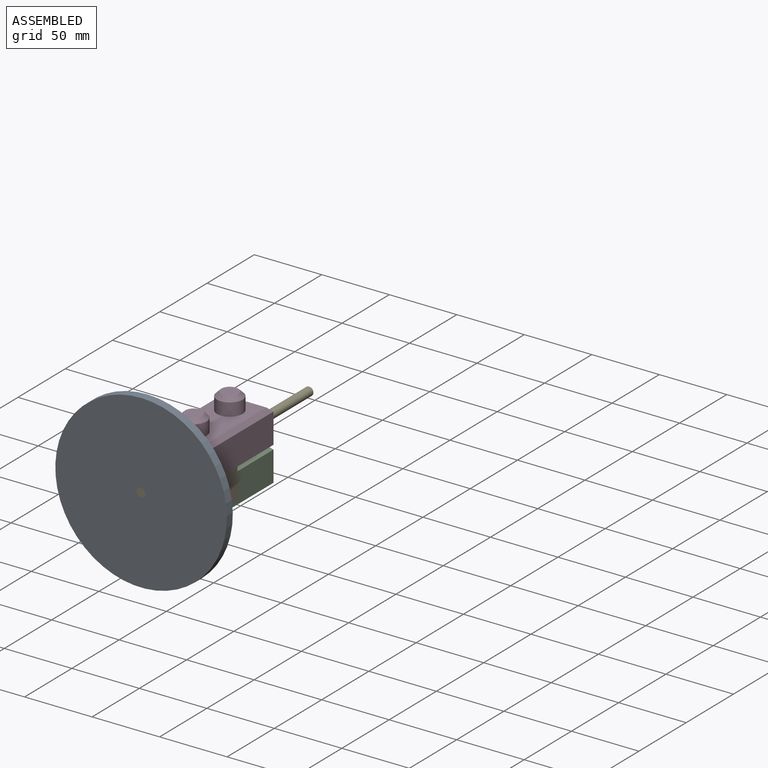
[diagram: assembled view]
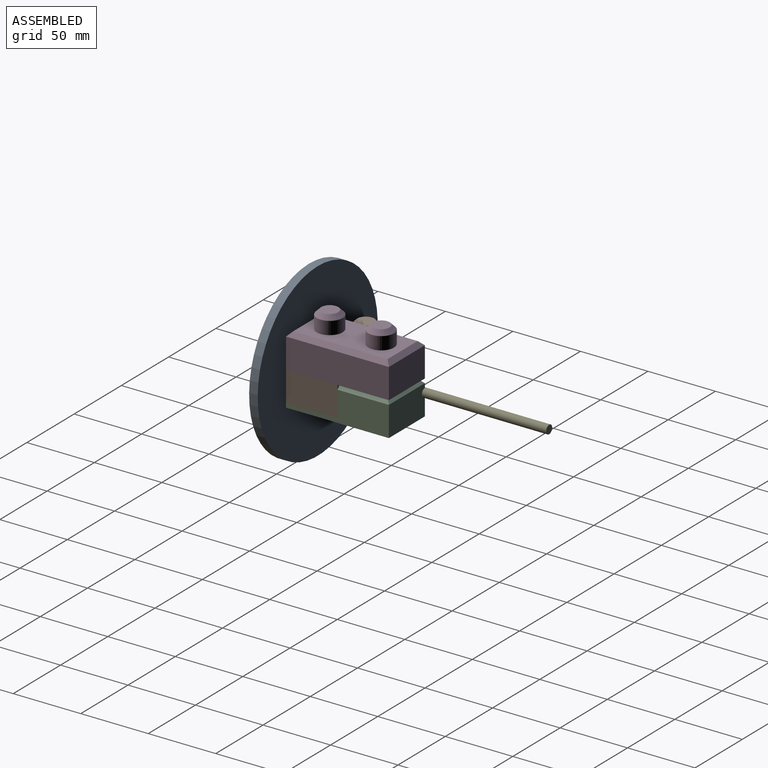
[diagram: assembled view, second angle]
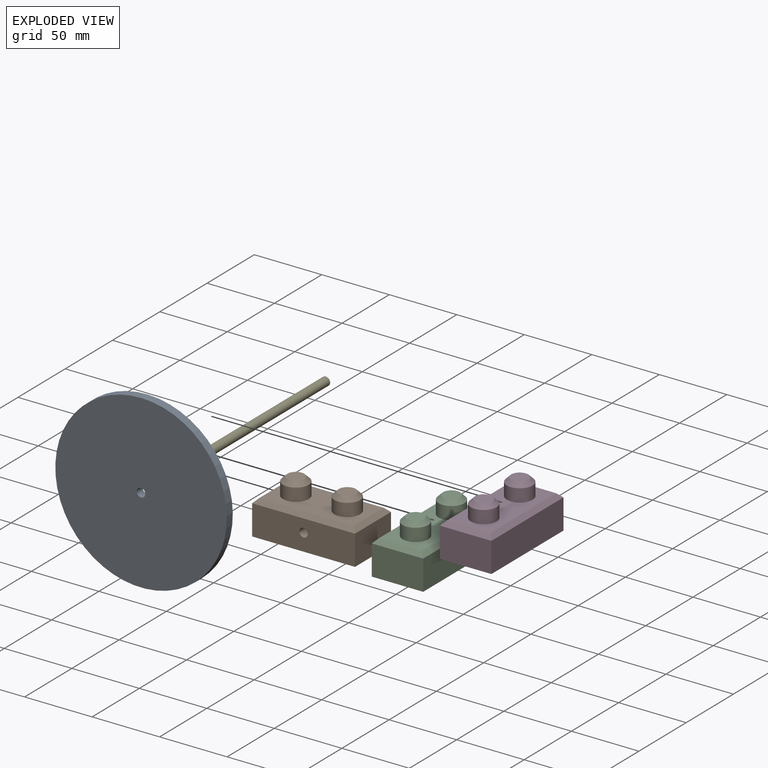
[diagram: exploded view]
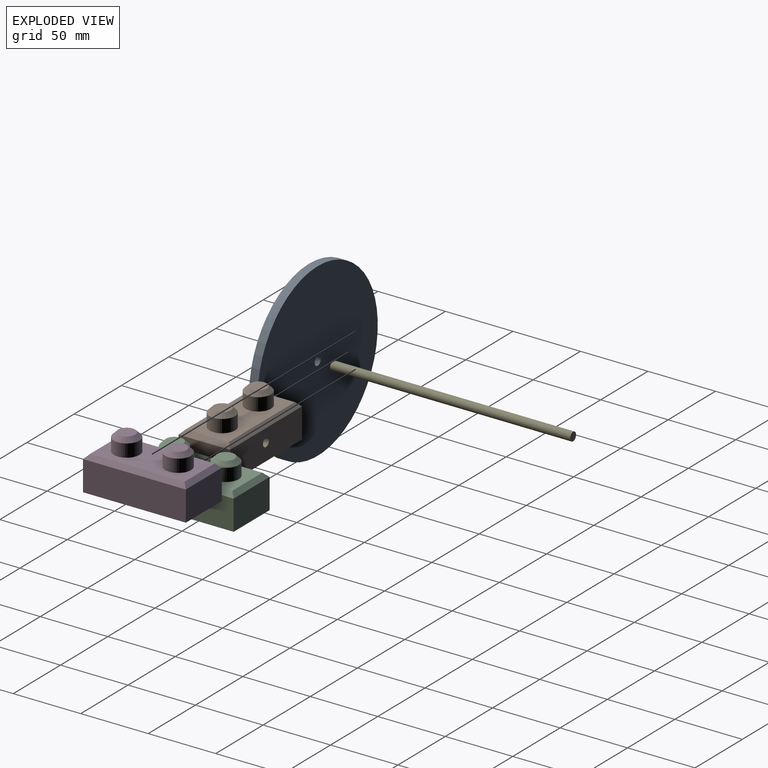
[diagram: exploded view, second angle]
ASSEMBLY  parts=5 mates=3
PART A: 4 faces, bbox 127x127x6.4 mm
  f0: cylinder r=3.17mm len=6.35mm, axis (0,0,-1), area 126.7mm2, adj f2,f3
  f1: cylinder r=63.5mm len=127mm, axis (0,0,-1), area 2533.5mm2, adj f2,f3
  f2: plane 127x127mm, normal (0,0,1), area 12636mm2, adj f0,f1
  f3: plane 127x127mm, normal (0,0,-1), area 12636mm2, adj f0,f1
PART B: 27 faces, bbox 76.2x38.1x38.1 mm
  f0: plane 38.1x22.23mm, normal (-1,0,0), area 846.8mm2, adj f1,f3,f5,f11
  f1: plane 76.2x22.23mm, normal (0,-1,0), area 1661.9mm2, adj f0,f2,f5,f10,f26
  f2: plane 38.1x22.23mm, normal (1,0,0), area 846.8mm2, adj f1,f3,f5,f12
  f3: plane 76.2x22.23mm, normal (0,1,0), area 1661.9mm2, adj f0,f2,f5,f13,f25
  f4: plane 69.85x31.75mm, normal (0,0,1), area 1647.7mm2, adj f6,f8,f10,f11,f12,f13
  f5: plane 76.2x38.1mm, normal (0,0,-1), area 1562.5mm2, adj f0,f1,f2,f3,f19,f20,f21,f22
  f6: cylinder r=9.53mm len=19.05mm, axis (0,0,-1), area 570mm2, adj f4,f14
  f7: plane 12.7x12.7mm, normal (0,0,1), area 126.7mm2, adj f14
  f8: cylinder r=9.53mm len=19.05mm, axis (0,0,-1), area 570mm2, adj f4,f15
  f9: plane 12.7x12.7mm, normal (0,0,1), area 126.7mm2, adj f15
  f10: plane 76.2x3.18mm, normal (0,-0.71,0.71), area 327.9mm2, adj f1,f4,f11,f12
  f11: plane 38.1x3.18mm, normal (-0.71,0,0.71), area 156.8mm2, adj f0,f4,f10,f13
  f12: plane 38.1x3.18mm, normal (0.71,0,0.71), area 156.8mm2, adj f2,f4,f10,f13
  f13: plane 76.2x3.18mm, normal (0,0.71,0.71), area 327.9mm2, adj f3,f4,f11,f12
  f14: cone r=6.35mm half-angle=45deg, axis (0,0,-1), area 223.9mm2, adj f6,f7
  f15: cone r=6.35mm half-angle=45deg, axis (0,0,-1), area 223.9mm2, adj f8,f9
  f16: plane 3.18x3.18mm, normal (0,0,-1), area 7.9mm2, adj f24
  f17: plane 3.18x3.18mm, normal (0,0,-1), area 7.9mm2, adj f23
  f18: plane 60.33x22.23mm, normal (0,0,-1), area 1324.9mm2, adj f19,f20,f21,f22,f23,f24
  f19: plane 22.23x17.46mm, normal (1,0,0), area 388.1mm2, adj f5,f18,f20,f22
  f20: plane 60.33x17.46mm, normal (0,1,0), area 1021.8mm2, adj f5,f18,f19,f21,f26
  f21: plane 22.23x17.46mm, normal (-1,0,0), area 388.1mm2, adj f5,f18,f20,f22
  f22: plane 60.33x17.46mm, normal (0,-1,0), area 1021.8mm2, adj f5,f18,f19,f21,f25
  f23: cylinder r=1.59mm len=12.7mm, axis (0,0,-1), area 126.7mm2, adj f17,f18
  f24: cylinder r=1.59mm len=12.7mm, axis (0,0,-1), area 126.7mm2, adj f16,f18
  f25: cylinder r=3.17mm len=7.94mm, axis (0,-1,0), area 158.3mm2, adj f3,f22
  f26: cylinder r=3.17mm len=7.94mm, axis (0,-1,0), area 158.3mm2, adj f1,f20
PART C: 25 faces, bbox 76.2x38.1x38.1 mm
  f0: plane 38.1x22.23mm, normal (-1,0,0), area 846.8mm2, adj f1,f3,f5,f13
  f1: plane 76.2x22.23mm, normal (0,-1,0), area 1693.5mm2, adj f0,f2,f5,f12
  f2: plane 38.1x22.23mm, normal (1,0,0), area 846.8mm2, adj f1,f3,f5,f10
  f3: plane 76.2x22.23mm, normal (0,1,0), area 1693.5mm2, adj f0,f2,f5,f11
  f4: plane 69.85x31.75mm, normal (0,0,1), area 1647.7mm2, adj f6,f8,f10,f11,f12,f13
  f5: plane 76.2x38.1mm, normal (0,0,-1), area 1562.5mm2, adj f0,f1,f2,f3,f19,f20,f21,f22
  f6: cylinder r=9.53mm len=19.05mm, axis (0,0,-1), area 570mm2, adj f4,f14
  f7: plane 12.7x12.7mm, normal (0,0,1), area 126.7mm2, adj f14
  f8: cylinder r=9.53mm len=19.05mm, axis (0,0,-1), area 570mm2, adj f4,f15
  f9: plane 12.7x12.7mm, normal (0,0,1), area 126.7mm2, adj f15
  f10: plane 38.1x3.18mm, normal (0.71,0,0.71), area 156.8mm2, adj f2,f4,f11,f12
  f11: plane 76.2x3.18mm, normal (0,0.71,0.71), area 327.9mm2, adj f3,f4,f10,f13
  f12: plane 76.2x3.18mm, normal (0,-0.71,0.71), area 327.9mm2, adj f1,f4,f10,f13
  f13: plane 38.1x3.18mm, normal (-0.71,0,0.71), area 156.8mm2, adj f0,f4,f11,f12
  f14: cone r=6.35mm half-angle=45deg, axis (0,0,-1), area 223.9mm2, adj f6,f7
  f15: cone r=6.35mm half-angle=45deg, axis (0,0,-1), area 223.9mm2, adj f8,f9
  f16: plane 3.18x3.18mm, normal (0,0,-1), area 7.9mm2, adj f24
  f17: plane 3.18x3.18mm, normal (0,0,-1), area 7.9mm2, adj f23
  f18: plane 60.33x22.23mm, normal (0,0,-1), area 1324.9mm2, adj f19,f20,f21,f22,f23,f24
  f19: plane 22.23x17.46mm, normal (1,0,0), area 388.1mm2, adj f5,f18,f20,f22
  f20: plane 60.33x17.46mm, normal (0,1,0), area 1053.4mm2, adj f5,f18,f19,f21
  f21: plane 22.23x17.46mm, normal (-1,0,0), area 388.1mm2, adj f5,f18,f20,f22
  f22: plane 60.33x17.46mm, normal (0,-1,0), area 1053.4mm2, adj f5,f18,f19,f21
  f23: cylinder r=1.59mm len=12.7mm, axis (0,0,-1), area 126.7mm2, adj f17,f18
  f24: cylinder r=1.59mm len=12.7mm, axis (0,0,-1), area 126.7mm2, adj f16,f18
PART D: same geometry as C
PART E: 3 faces, bbox 6.4x6.4x177.8 mm
  f0: cylinder r=3.17mm len=177.8mm, axis (0,0,-1), area 3547mm2, adj f1,f2
  f1: plane 6.35x6.35mm, normal (0,0,1), area 31.7mm2, adj f0
  f2: plane 6.35x6.35mm, normal (0,0,-1), area 31.7mm2, adj f0
PLACE A rot(axis=(0.58,-0.57,0.57),119.6deg) t=(26.07,-36.26,-198.96)mm
PLACE B t=(-12.03,5.02,-211.66)mm fixed
PLACE C rot(axis=(0,0,-1),90deg) t=(64.17,43.12,-214.83)mm
PLACE D rot(axis=(0,0,-1),90deg) t=(64.17,43.12,-189.43)mm fixed
PLACE E rot(axis=(1,0,0),90deg) t=(26.07,135.19,-198.96)mm fixed
MATE planar C.f4 <-> D.f5  axis (0,0,1) through (45.12,5.02,-189.43)mm
MATE cylindrical A.f0 <-> E.f0  axis (0,-1,0) through (26.07,-42.61,-198.96)mm
MATE planar A.f0 <-> E.f0  axis (0,-1,0) through (26.07,-42.61,-198.96)mm
